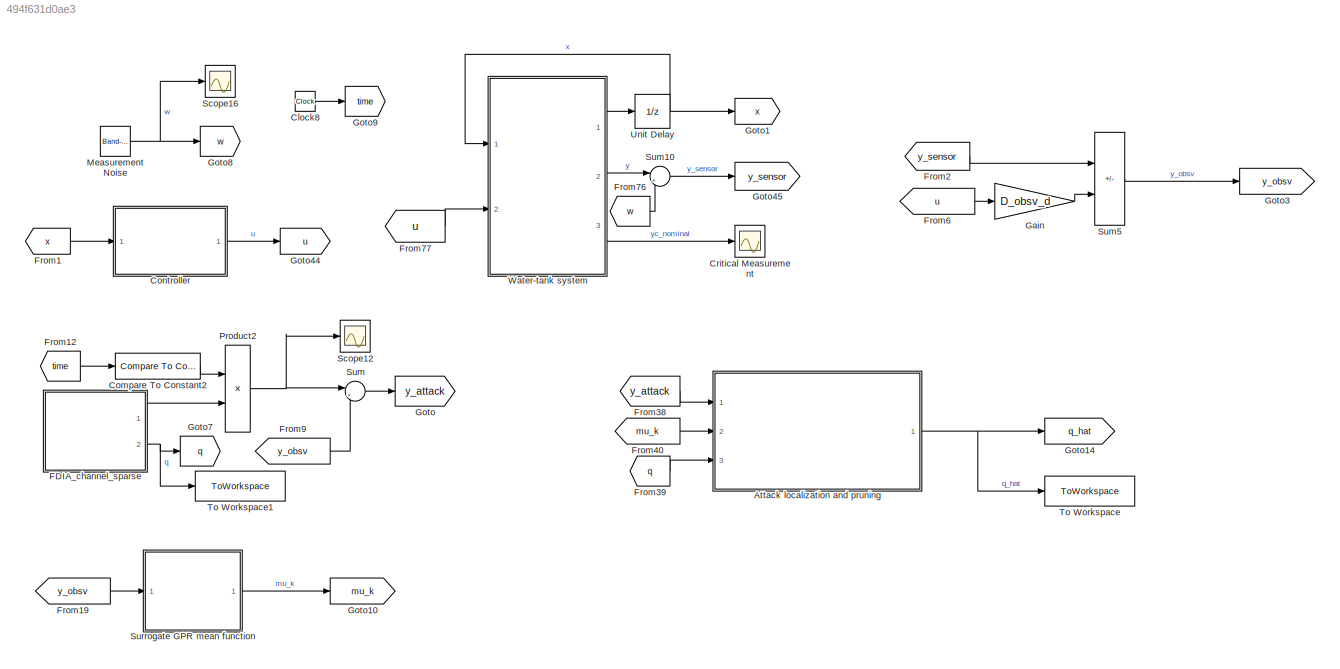
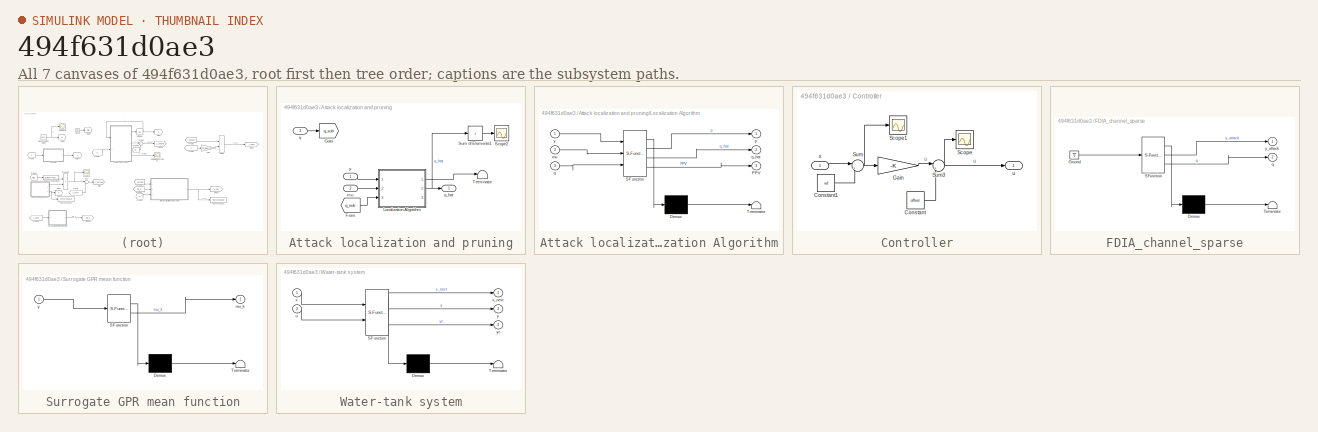
[diagram: thumbnail index - all 7 canvases of the model, root first then tree order]
MODEL slx_494f631d0ae3
KIND model
CONFIG AbsTol = auto
CONFIG EnableMultiTasking = off
CONFIG FixedStep = T_sample
CONFIG MaxStep = auto
CONFIG MinStep = auto
CONFIG RelTol = 1e-3
CONFIG SampleTimeConstraint = Unconstrained
CONFIG SolverName = FixedStepDiscrete
CONFIG StartTime = 0.0
CONFIG StopTime = T_final
BLOCK [SubSystem] Attack localization and pruning
  Ports = [3, 1]
  RequestExecContextInheritance = off
BLOCK [From] Attack localization and pruning/From
  GotoTag = q_sub
BLOCK [Goto] Attack localization and pruning/Goto
  GotoTag = q_sub
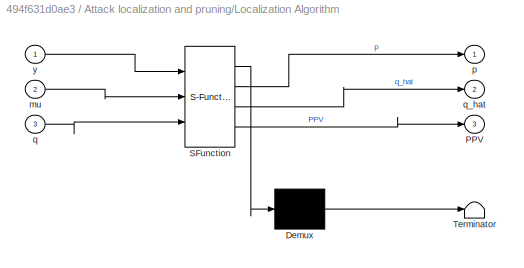
BLOCK [SubSystem] Attack localization and pruning/Localization Algorithm
  ErrorFcn = Stateflow.Translate.translate
  PermitHierarchicalResolution = ExplicitOnly
  Ports = [3, 3]
  RequestExecContextInheritance = off
  SFBlockType = MATLAB Function
  TreatAsAtomicUnit = on
BLOCK [Demux] Attack localization and pruning/Localization Algorithm/ Demux 
  Outputs = 1
  Ports = [1, 1]
BLOCK [S-Function] Attack localization and pruning/Localization Algorithm/ SFunction 
  EnableBusSupport = on
  FunctionName = sf_sfun
  Parameters = Sigma,n_meas
  PortCounts = [3 4]
  Ports = [3, 4]
  SFcnIsStateOwnerBlock = off
  SFunctionDeploymentMode = off
  Tag = Stateflow S-Function 13
BLOCK [Terminator] Attack localization and pruning/Localization Algorithm/ Terminator 
BLOCK [Outport] Attack localization and pruning/Localization Algorithm/PPV
  Port = 3
BLOCK [Inport] Attack localization and pruning/Localization Algorithm/mu
  Port = 2
BLOCK [Outport] Attack localization and pruning/Localization Algorithm/p
BLOCK [Inport] Attack localization and pruning/Localization Algorithm/q
  Port = 3
BLOCK [Outport] Attack localization and pruning/Localization Algorithm/q_hat
  Port = 2
BLOCK [Inport] Attack localization and pruning/Localization Algorithm/y
BLOCK [Scope] Attack localization and pruning/Scope2
  Floating = off
  NumInputPorts = 1
  Ports = [1]
  ScopeSpecificationString = Simulink.scopes.TimeScopeBlockCfg('CurrentConfiguration', extmgr.ConfigurationSet(extmgr.Configuration('Core','General UI',true),extmgr.Configuration('Core','Source UI',true),extmgr.Configuration('Sources','WiredSimulink',true,'DataLoggingVariableName','ScopeData18'),extmgr.Configuration('Visuals','Time Domain',true,'SerializedDisplays',{struct('MinYLimReal','49.75','MaxYLimReal','62.25','YLabelRe...<+1412ch>
BLOCK [Sum] Attack localization and pruning/Sum of Elements1
  IconShape = rectangular
  Inputs = +
  Ports = [1, 1]
BLOCK [Terminator] Attack localization and pruning/Terminator
BLOCK [Inport] Attack localization and pruning/mu
  Port = 2
BLOCK [Inport] Attack localization and pruning/q
  Port = 3
BLOCK [Outport] Attack localization and pruning/q_hat
BLOCK [Inport] Attack localization and pruning/y
BLOCK [Clock] Clock8
BLOCK [Reference] Compare To Constant2  REF=simulink/Logic and Bit
Operations/Compare
To Constant
  Ports = [1, 1]
  SourceBlock = simulink/Logic and Bit\nOperations/Compare\nTo Constant
  SourceProductBaseCode = SL
  SourceType = Compare To Constant
BLOCK [SubSystem] Controller
  Ports = [1, 1]
  RequestExecContextInheritance = off
BLOCK [Constant] Controller/Constant
  Value = offset
BLOCK [Constant] Controller/Constant1
  Value = xd
BLOCK [Gain] Controller/Gain
  Gain = -K
  Multiplication = Matrix(K*u) (u vector)
BLOCK [Scope] Controller/Scope
  Floating = off
  NumInputPorts = 1
  Ports = [1]
  ScopeSpecificationString = Simulink.scopes.TimeScopeBlockCfg('CurrentConfiguration', extmgr.ConfigurationSet(extmgr.Configuration('Core','General UI',true),extmgr.Configuration('Core','Source UI',true),extmgr.Configuration('Sources','WiredSimulink',true),extmgr.Configuration('Visuals','Time Domain',true,'SerializedDisplays',{struct('MinYLimReal','-0.15107','MaxYLimReal','1.13901','YLabelReal','','MinYLimMag','0.00000','MaxY...<+1504ch>
BLOCK [Scope] Controller/Scope1
  Floating = off
  NumInputPorts = 1
  Ports = [1]
  ScopeSpecificationString = Simulink.scopes.TimeScopeBlockCfg('CurrentConfiguration', extmgr.ConfigurationSet(extmgr.Configuration('Core','General UI',true),extmgr.Configuration('Core','Source UI',true),extmgr.Configuration('Sources','WiredSimulink',true,'DataLoggingVariableName','ScopeData8'),extmgr.Configuration('Visuals','Time Domain',true,'SerializedDisplays',{struct('MinYLimReal','-5.625','MaxYLimReal','0.625','YLabelRe...<+1485ch>
BLOCK [Sum] Controller/Sum
  Inputs = |+-
  Ports = [2, 1]
BLOCK [Sum] Controller/Sum3
  Inputs = |++
  Ports = [2, 1]
BLOCK [Outport] Controller/u
BLOCK [Inport] Controller/x
BLOCK [Scope] Critical Measurement
  Floating = off
  NumInputPorts = 1
  Ports = [1]
  ScopeSpecificationString = Simulink.scopes.TimeScopeBlockCfg('CurrentConfiguration', extmgr.ConfigurationSet(extmgr.Configuration('Core','General UI',true),extmgr.Configuration('Core','Source UI',true),extmgr.Configuration('Sources','WiredSimulink',true,'DataLoggingVariableName','ScopeData1'),extmgr.Configuration('Visuals','Time Domain',true,'SerializedDisplays',{struct('MinYLimReal','-4.68179','MaxYLimReal','57.03282','YLa...<+1445ch>
BLOCK [SubSystem] FDIA_channel_sparse
  ErrorFcn = Stateflow.Translate.translate
  PermitHierarchicalResolution = ExplicitOnly
  Ports = [0, 2]
  RequestExecContextInheritance = off
  SFBlockType = MATLAB Function
  TreatAsAtomicUnit = on
BLOCK [Demux] FDIA_channel_sparse/ Demux 
  Outputs = 1
  Ports = [1, 1]
BLOCK [Ground] FDIA_channel_sparse/ Ground 
BLOCK [S-Function] FDIA_channel_sparse/ SFunction 
  EnableBusSupport = on
  FunctionName = sf_sfun
  Parameters = BDD_thresh,C_obsv_d,max_attack,n_attack,n_meas
  PortCounts = [1 3]
  Ports = [1, 3]
  SFcnIsStateOwnerBlock = off
  SFunctionDeploymentMode = off
  Tag = Stateflow S-Function 11
BLOCK [Terminator] FDIA_channel_sparse/ Terminator 
BLOCK [Outport] FDIA_channel_sparse/q
  Port = 2
BLOCK [Outport] FDIA_channel_sparse/y_attack
BLOCK [From] From1
  GotoTag = x
BLOCK [From] From12
  GotoTag = time
BLOCK [From] From19
  GotoTag = y_obsv
  TagVisibility = global
BLOCK [From] From2
  GotoTag = y_sensor
BLOCK [From] From38
  GotoTag = y_attack
BLOCK [From] From39
  GotoTag = q
BLOCK [From] From40
  GotoTag = mu_k
  TagVisibility = global
BLOCK [From] From6
  GotoTag = u
BLOCK [From] From76
  GotoTag = w
BLOCK [From] From77
  GotoTag = u
BLOCK [From] From9
  GotoTag = y_obsv
  TagVisibility = global
BLOCK [Gain] Gain
  Gain = D_obsv_d
  Multiplication = Matrix(K*u) (u vector)
BLOCK [Goto] Goto
  GotoTag = y_attack
BLOCK [Goto] Goto1
  GotoTag = x
BLOCK [Goto] Goto10
  GotoTag = mu_k
  TagVisibility = global
BLOCK [Goto] Goto14
  GotoTag = q_hat
BLOCK [Goto] Goto3
  GotoTag = y_obsv
  TagVisibility = global
BLOCK [Goto] Goto44
  GotoTag = u
BLOCK [Goto] Goto45
  GotoTag = y_sensor
BLOCK [Goto] Goto7
  GotoTag = q
BLOCK [Goto] Goto8
  GotoTag = w
BLOCK [Goto] Goto9
  GotoTag = time
BLOCK [Reference] Measurement Noise  REF=simulink/Sources/Band-Limited
White Noise
  Ports = [0, 1]
  SourceBlock = simulink/Sources/Band-Limited\nWhite Noise
  SourceProductBaseCode = SL
  SourceType = Band-Limited White Noise.
BLOCK [Product] Product2
  Ports = [2, 1]
BLOCK [Scope] Scope12
  Floating = off
  NumInputPorts = 1
  Ports = [1]
  ScopeSpecificationString = Simulink.scopes.TimeScopeBlockCfg('CurrentConfiguration', extmgr.ConfigurationSet(extmgr.Configuration('Core','General UI',true),extmgr.Configuration('Core','Source UI',true),extmgr.Configuration('Sources','WiredSimulink',true,'DataLoggingVariableName','ScopeData23'),extmgr.Configuration('Visuals','Time Domain',true,'SerializedDisplays',{struct('MinYLimReal','-6.36337','MaxYLimReal','7.03404','YLa...<+2203ch>
BLOCK [Scope] Scope16
  Floating = off
  NumInputPorts = 1
  Ports = [1]
  ScopeSpecificationString = Simulink.scopes.TimeScopeBlockCfg('CurrentConfiguration', extmgr.ConfigurationSet(extmgr.Configuration('Core','General UI',true),extmgr.Configuration('Core','Source UI',true),extmgr.Configuration('Sources','WiredSimulink',true,'DataLoggingVariableName','ScopeData6'),extmgr.Configuration('Visuals','Time Domain',true,'SerializedDisplays',{struct('MinYLimReal','-0.01438','MaxYLimReal','0.01546','YLab...<+1385ch>
BLOCK [Sum] Sum
  Inputs = |++
  Ports = [2, 1]
BLOCK [Sum] Sum10
  Inputs = |++
  Ports = [2, 1]
BLOCK [Sum] Sum5
  IconShape = rectangular
  Inputs = +-
  Ports = [2, 1]
BLOCK [SubSystem] Surrogate GPR mean function
  ErrorFcn = Stateflow.Translate.translate
  PermitHierarchicalResolution = ExplicitOnly
  Ports = [1, 1]
  RequestExecContextInheritance = off
  SFBlockType = MATLAB Function
  TreatAsAtomicUnit = on
BLOCK [Demux] Surrogate GPR mean function/ Demux 
  Outputs = 1
  Ports = [1, 1]
BLOCK [S-Function] Surrogate GPR mean function/ SFunction 
  EnableBusSupport = on
  FunctionName = sf_sfun
  Parameters = n_meas,r_tau,sigma_inv_k
  PortCounts = [1 2]
  Ports = [1, 2]
  SFcnIsStateOwnerBlock = off
  SFunctionDeploymentMode = off
  Tag = Stateflow S-Function 5
BLOCK [Terminator] Surrogate GPR mean function/ Terminator 
BLOCK [Outport] Surrogate GPR mean function/mu_k
BLOCK [Inport] Surrogate GPR mean function/y
BLOCK [ToWorkspace] To Workspace
  FixptAsFi = on
  MaxDataPoints = inf
  Ports = [1]
  SampleTime = -1
  SaveFormat = Timeseries
  VariableName = qhat
BLOCK [ToWorkspace] To Workspace1
  FixptAsFi = on
  MaxDataPoints = inf
  Ports = [1]
  SampleTime = -1
  SaveFormat = Timeseries
  VariableName = q
BLOCK [UnitDelay] Unit Delay
  HasFrameUpgradeWarning = on
  InitialCondition = x0
  SampleTime = -1
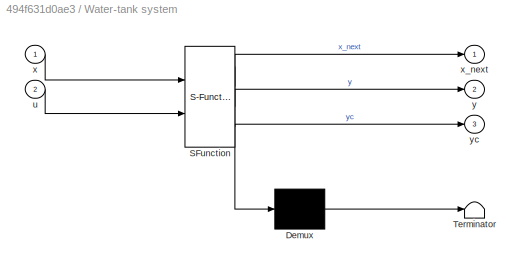
BLOCK [SubSystem] Water-tank system
  ErrorFcn = Stateflow.Translate.translate
  PermitHierarchicalResolution = ExplicitOnly
  Ports = [2, 3]
  RequestExecContextInheritance = off
  SFBlockType = MATLAB Function
  TreatAsAtomicUnit = on
BLOCK [Demux] Water-tank system/ Demux 
  Outputs = 1
  Ports = [1, 1]
BLOCK [S-Function] Water-tank system/ SFunction 
  EnableBusSupport = on
  FunctionName = sf_sfun
  Parameters = A_bar_d,B_bar_d,C_obsv_d,Cm,D_obsv_d
  PortCounts = [2 4]
  Ports = [2, 4]
  SFcnIsStateOwnerBlock = off
  SFunctionDeploymentMode = off
  Tag = Stateflow S-Function 35
BLOCK [Terminator] Water-tank system/ Terminator 
BLOCK [Inport] Water-tank system/u
  Port = 2
BLOCK [Inport] Water-tank system/x
BLOCK [Outport] Water-tank system/x_next
BLOCK [Outport] Water-tank system/y
  Port = 2
BLOCK [Outport] Water-tank system/yc
  Port = 3
LINE Attack localization and pruning/From:1 -> Attack localization and pruning/Localization Algorithm:3
LINE Attack localization and pruning/Localization Algorithm:1 -> Attack localization and pruning/Terminator:1
NET Attack localization and pruning/Localization Algorithm:2 -> Attack localization and pruning/Sum of Elements1:1, Attack localization and pruning/q_hat:1
LINE Attack localization and pruning/Sum of Elements1:1 -> Attack localization and pruning/Scope2:1
LINE Attack localization and pruning/mu:1 -> Attack localization and pruning/Localization Algorithm:2
LINE Attack localization and pruning/q:1 -> Attack localization and pruning/Goto:1
LINE Attack localization and pruning/y:1 -> Attack localization and pruning/Localization Algorithm:1
NET Attack localization and pruning:1 -> Goto14:1, To Workspace:1
LINE Clock8:1 -> Goto9:1
LINE Compare To Constant2:1 -> Product2:1
LINE Controller/Constant1:1 -> Controller/Sum:2
LINE Controller/Constant:1 -> Controller/Sum3:2
LINE Controller/Gain:1 -> Controller/Sum3:1
NET Controller/Sum3:1 -> Controller/Scope:1, Controller/u:1
NET Controller/Sum:1 -> Controller/Gain:1, Controller/Scope1:1
LINE Controller/x:1 -> Controller/Sum:1
LINE Controller:1 -> Goto44:1
LINE FDIA_channel_sparse:1 -> Product2:2
NET FDIA_channel_sparse:2 -> Goto7:1, To Workspace1:1
LINE From12:1 -> Compare To Constant2:1
LINE From19:1 -> Surrogate GPR mean function:1
LINE From1:1 -> Controller:1
LINE From2:1 -> Sum5:1
LINE From38:1 -> Attack localization and pruning:1
LINE From39:1 -> Attack localization and pruning:3
LINE From40:1 -> Attack localization and pruning:2
LINE From6:1 -> Gain:1
LINE From76:1 -> Sum10:2
LINE From77:1 -> Water-tank system:2
LINE From9:1 -> Sum:2
LINE Gain:1 -> Sum5:2
NET Measurement Noise:1 -> Goto8:1, Scope16:1
NET Product2:1 -> Scope12:1, Sum:1
LINE Sum10:1 -> Goto45:1
LINE Sum5:1 -> Goto3:1
LINE Sum:1 -> Goto:1
LINE Surrogate GPR mean function:1 -> Goto10:1
NET Unit Delay:1 -> Goto1:1, Water-tank system:1
LINE Water-tank system:1 -> Unit Delay:1
LINE Water-tank system:2 -> Sum10:1
LINE Water-tank system:3 -> Critical Measurement:1
note: NET lines group one-source signal fan-out (src -> all destinations, sorted); 1:1 wires keep LINE
CHART Surrogate GPR 
mean function states=1 transitions=1
  STATE_LABEL 'eML_blk_kernel()'
  STATE_LABEL "SCRIPT:\nfunction mu_k = fcn(y,sigma_inv_k, r_tau,n_meas)\n% Prunes a random vector to find mu_k so that ||y-mu_k||_Sigma_inv_k <= r_tau\n\n% first: random vector, secomd: normalize\ny_rand = rand(n_meas,1);\ny_rand = sqrt(r_tau/max(sigma_inv_k))/norm(y_rand)*y_rand;\n\n% create mu_k from y\nmu_k = y - y_rand;\n\n% mu_k = (U_y_1*U_y_1.')*y;\n"
CHART FDIA_channel_sparse states=1 transitions=1
  STATE_LABEL 'eML_blk_kernel()'
  STATE_LABEL 'SCRIPT:\nfunction [y_attack,q] = fcn(n_attack,n_meas,C_obsv_d,max_attack, BDD_thresh)\n\n%% Measurement Channel Attack\n%  Assumptions:\n%  1. The attacker knows the actual measurement\n%  2. The attacker can only corrupt upto n_attack measurements\n%  3. The attacker knows the BDD theshold\n\nattack_idx = randi(n_meas,n_attack,1);\n% attack_idx = [10; 18];\ny_attack   = gen_attack_channel(C_obsv_d, max_atta...<+273ch>'
CHART Attack localization and pruning/Localization Algorithm states=1 transitions=1
  STATE_LABEL 'eML_blk_kernel()'
  STATE_LABEL 'SCRIPT:\nfunction [p, q_hat,PPV] = fcn(y,mu,Sigma, n_meas,q)\n\n%% calculate probability\nz = (y - mu)./diag(Sigma);\np = 2*(ones(n_meas,1)-normcdf(abs(z)));\n\n%% support prior and corresponding confidence\n% q_hat = zeros(n_meas,1);\n% q_hat(p <= 0.5) = 1;\nq_hat = double(p>=0.5);\n\nPPV = sum(q.*q_hat)/sum(q_hat);\n\n\n'
CHART Water-tank system states=1 transitions=1
  STATE_LABEL 'eML_blk_kernel()'
  STATE_LABEL 'SCRIPT:\nfunction [x_next,y,yc] = fcn(x,u,A_bar_d,C_obsv_d,B_bar_d,D_obsv_d,Cm)\n% Discrete state-space model for system\n\nx_next = A_bar_d*x + B_bar_d*u ;\n\ny = C_obsv_d*x + D_obsv_d*u;\n\n% critical measurements\nyc = Cm*x;\n\n\n'
CHART  states=0 transitions=0
CHART  states=0 transitions=0
CHART  states=0 transitions=0
CHART  states=0 transitions=0
